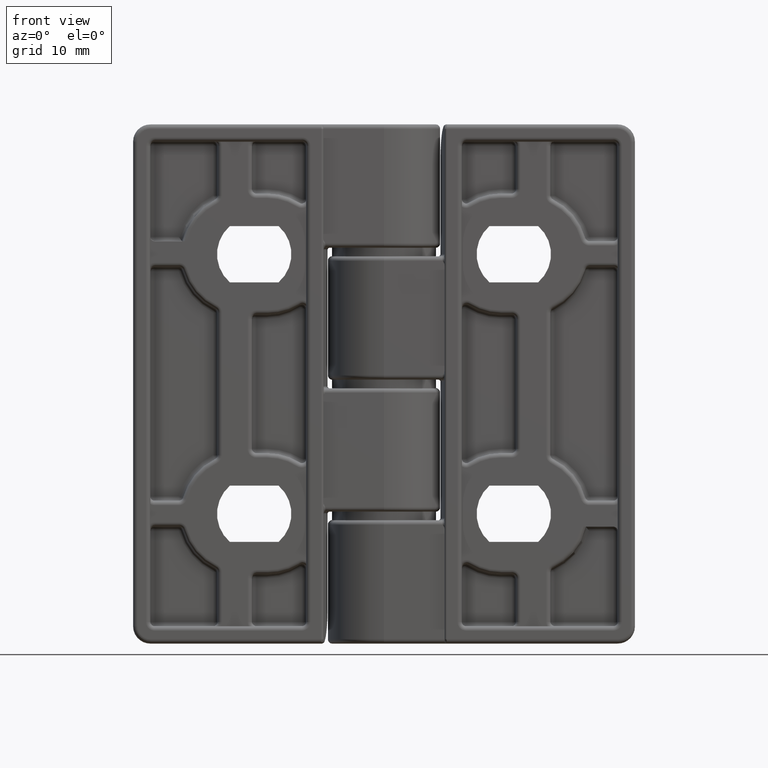
[diagram: clean part render]
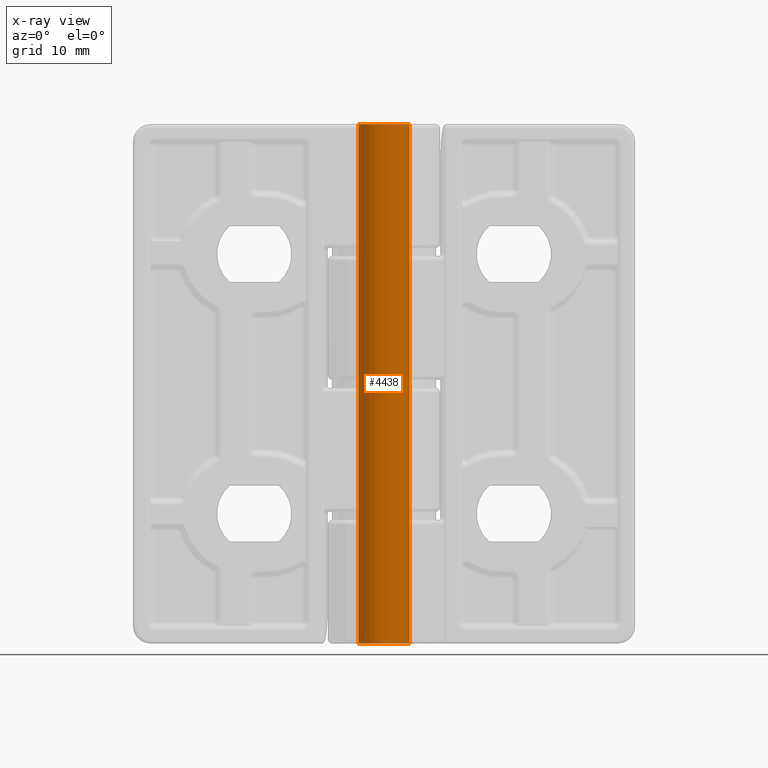
[diagram: x-ray — body ghosted, one internal face saturated and labeled with its STEP entity id]
A machine part, front view, then the same camera in x-ray: the body is ghosted and one INTERNAL B-rep face — a face not visible from any outside direction — is saturated and labeled: STEP entity #4438.
In plain terms, the highlighted cylindrical surface (bore or boss wall) has radius 2.95 mm, axis along (0, 0, 1).
Its self-contained STEP definition (entity closure, byte-faithful):
#283=CYLINDRICAL_SURFACE('',#5051,2.95);
#301=FACE_BOUND('',#959,.T.);
#648=FACE_OUTER_BOUND('',#958,.T.);
#958=EDGE_LOOP('',(#4083));
#959=EDGE_LOOP('',(#4084));
#1281=CIRCLE('',#5050,2.95);
#1282=CIRCLE('',#5052,2.95);
#2161=VERTEX_POINT('',#9025);
#2162=VERTEX_POINT('',#9028);
#2802=EDGE_CURVE('',#2161,#2161,#1281,.T.);
#2803=EDGE_CURVE('',#2162,#2162,#1282,.T.);
#4083=ORIENTED_EDGE('',*,*,#2802,.T.);
#4084=ORIENTED_EDGE('',*,*,#2803,.T.);
#4438=ADVANCED_FACE('',(#648,#301),#283,.T.);
#5050=AXIS2_PLACEMENT_3D('',#9026,#6534,#6535);
#5051=AXIS2_PLACEMENT_3D('',#9027,#6536,#6537);
#5052=AXIS2_PLACEMENT_3D('',#9029,#6538,#6539);
#6534=DIRECTION('center_axis',(0.,0.,1.));
#6535=DIRECTION('ref_axis',(-1.,0.,0.));
#6536=DIRECTION('center_axis',(0.,0.,1.));
#6537=DIRECTION('ref_axis',(-1.,0.,0.));
#6538=DIRECTION('center_axis',(0.,0.,-1.));
#6539=DIRECTION('ref_axis',(-1.,0.,0.));
#9025=CARTESIAN_POINT('',(2.95,3.61270805748469E-16,-30.));
#9026=CARTESIAN_POINT('Origin',(0.,0.,-30.));
#9027=CARTESIAN_POINT('Origin',(0.,0.,0.));
#9028=CARTESIAN_POINT('',(2.95,3.61270805748469E-16,30.));
#9029=CARTESIAN_POINT('Origin',(0.,0.,30.));